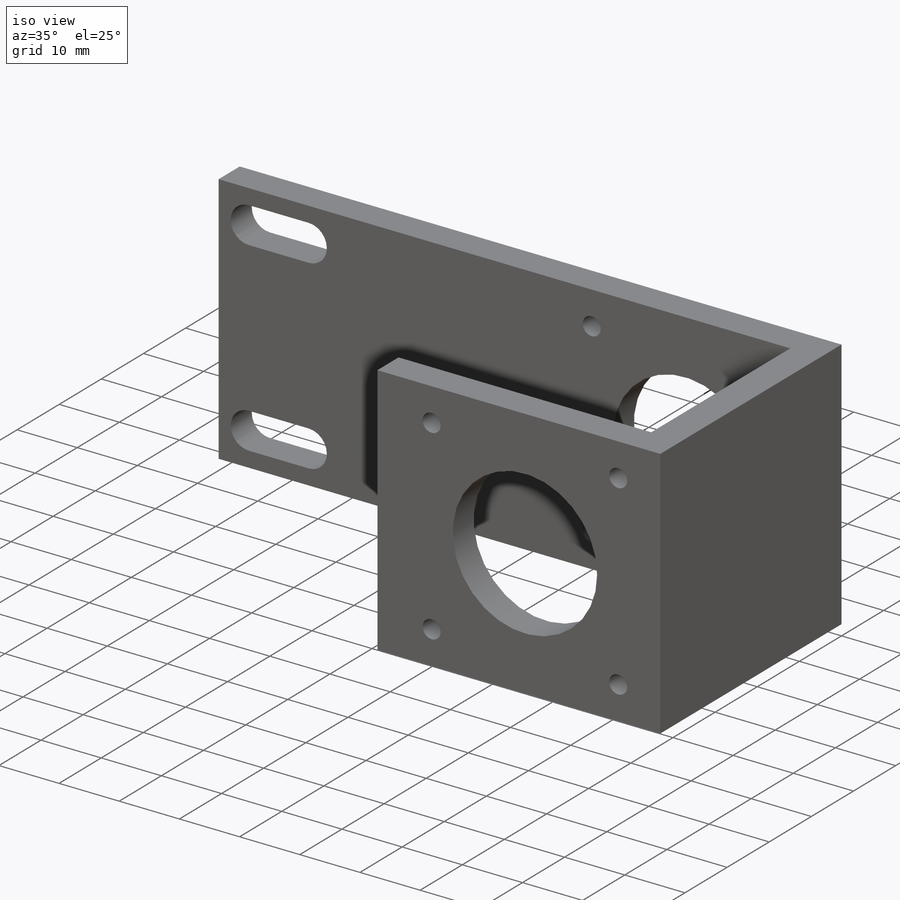
[diagram: iso view]
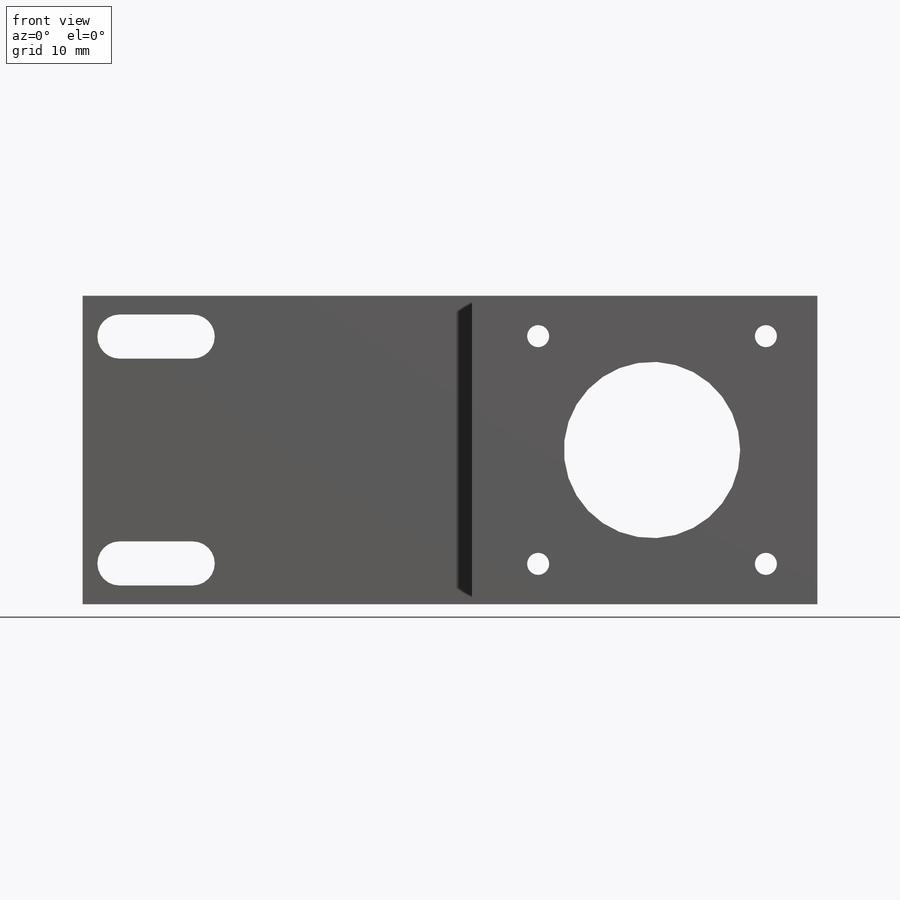
[diagram: front view]
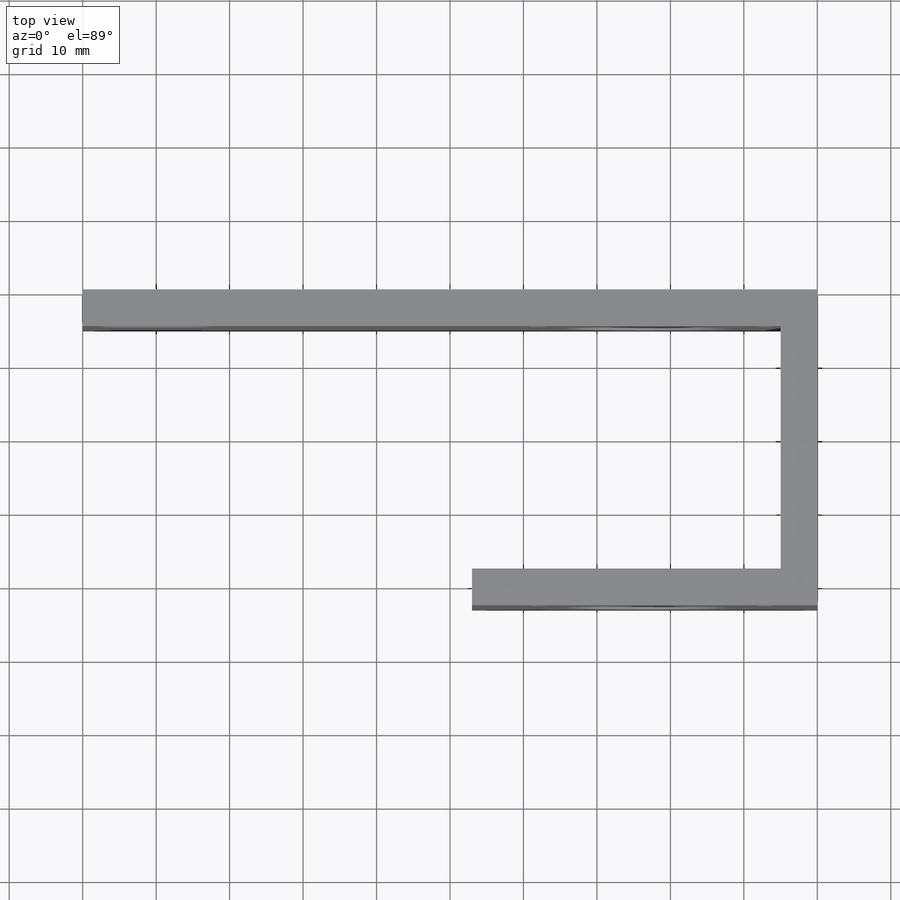
[diagram: top view]
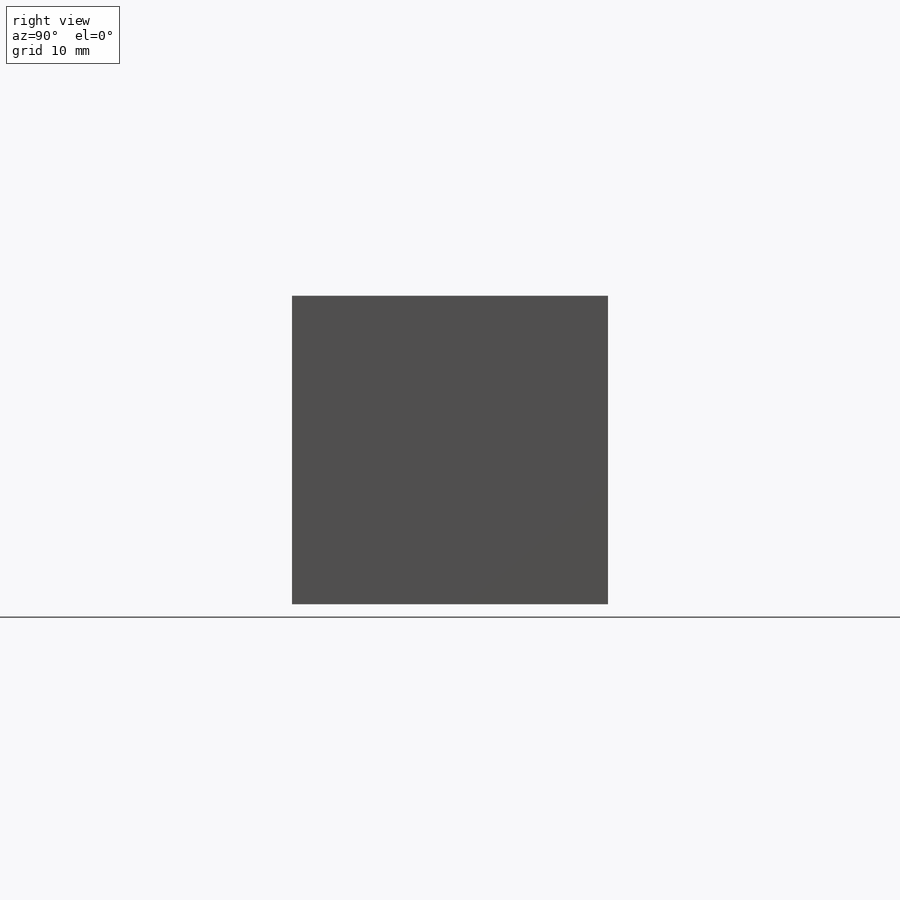
[diagram: right view]
SOLIDWORKS PART (.sldprt)
format: sldprt  version: not decoded by parser v0  size: 256,000 bytes
history: native  units: mm
features: sketch x7, plane x3, extrude x3, cut_extrude x2, material x1 (+9 scaffold rows collapsed)
feature tree (25):
  scaffold x9  (default folders/planes/origin — collapsed)
  material  "Material <sin especificar>"
  plane  "Alzado"
  plane  "Planta"
  plane  "Vista lateral"
  sketch  "Croquis1"  dims[c1.D4=6.0mm c1.D5=3.0mm c1.D6=3.0mm c1.D1=42.0mm c1.D2=100.0mm c1.D3=5.0mm c2.D4=10.5mm c2.D5=21.0mm c3.D4=15.44mm]
  extrude  "Saliente-Extruir1"  Depth=5mm
  sketch  "Croquis2"  dims[D1=5.0mm]
  extrude  "Saliente-Extruir2"  Depth=38mm
  sketch  "Croquis3"  dims[D1=5.0mm]
  sketch  "Croquis4"  dims[D1=72.5mm]
  extrude  "Saliente-Extruir3"  Depth=42mm
  sketch  "Croquis7"  dims[c1.D4=3.0mm c1.D6=24.0mm c1.D1=19.5mm c1.D2=31.0mm c1.D3=31.0mm c1.D5=4.0mm c2.D6=4.0mm c2.D5=9.0mm]
  cut_extrude  "Cortar-Extruir1"  [1 undecoded]
  sketch  "Croquis8"  dims[D1=24.0mm]
  cut_extrude  "Cortar-Extruir2"  [1 undecoded]
  sketch  "Croquis11"
decode coverage: 9 of 12 modeling features carry decoded parameters
note: 2 parameter values undecoded
note: suppression state not decoded; provenance and decode notes live in map.json
